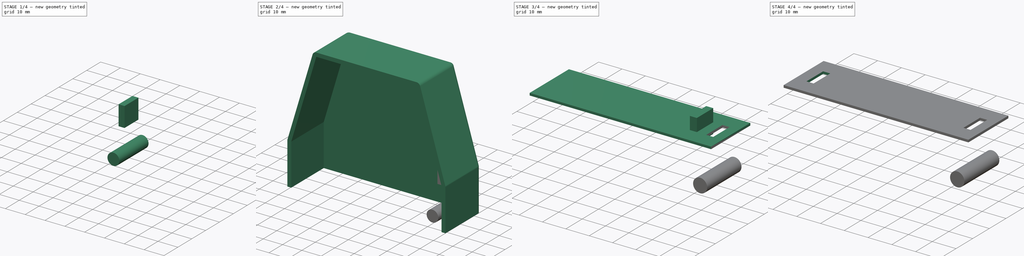
[diagram: build sequence overview — one tinted view per stage of 4, left to right]
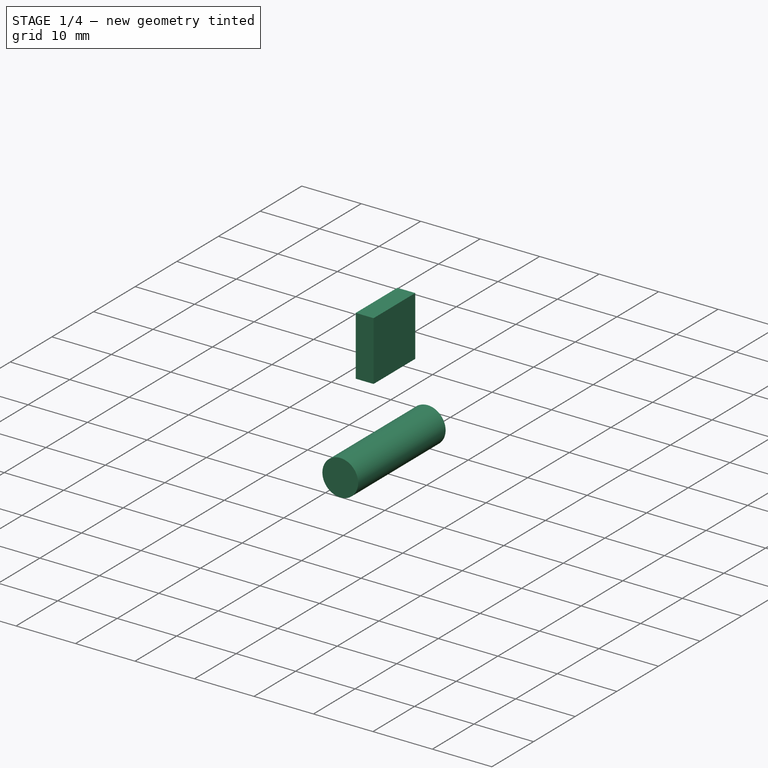
[diagram: stage 1 of 4 — iso view after this stage's code; geometry added in this stage tinted green]
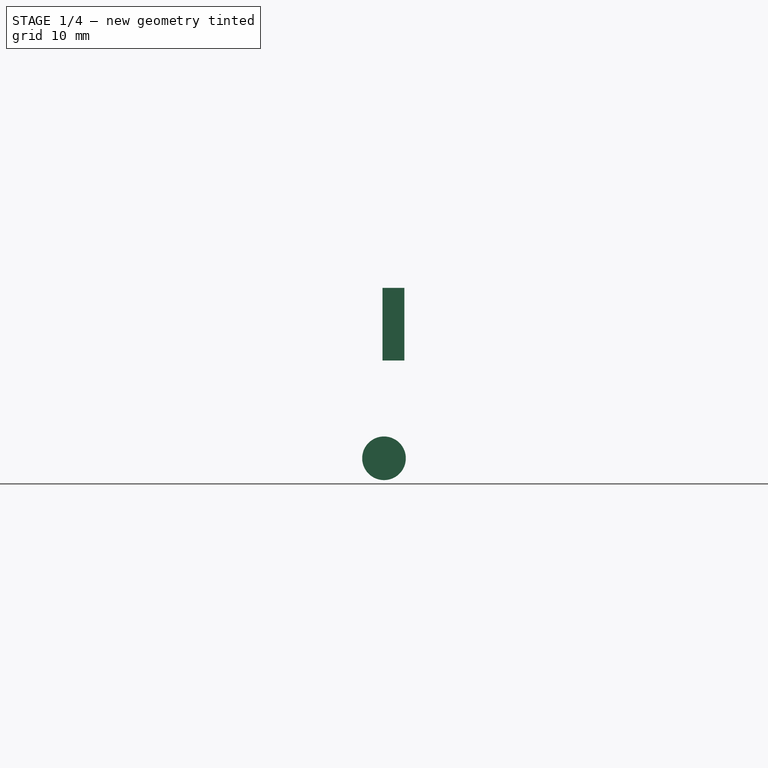
[diagram: stage 1 of 4 — front view after this stage's code; geometry added in this stage tinted green]
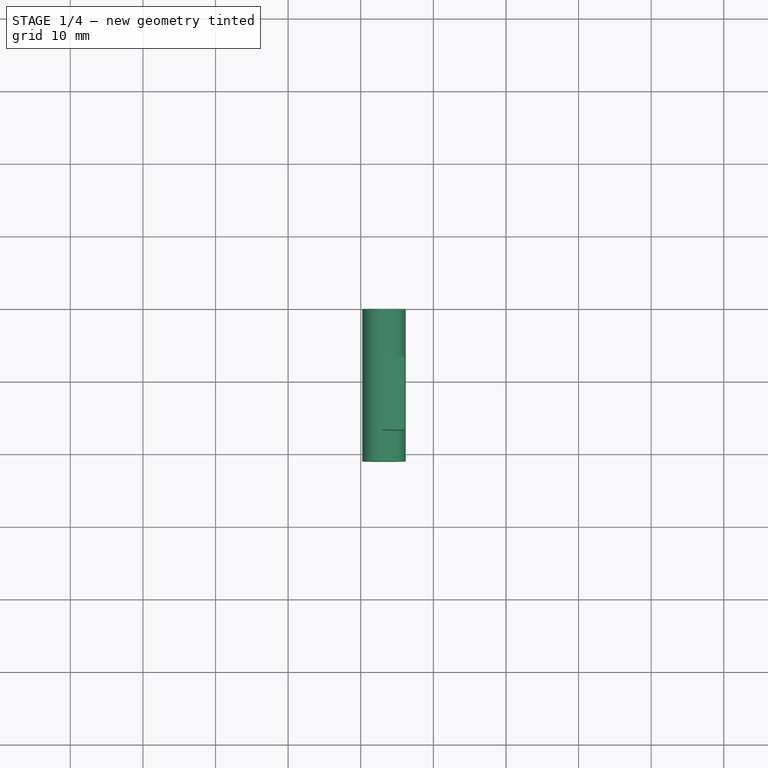
[diagram: stage 1 of 4 — top view after this stage's code; geometry added in this stage tinted green]
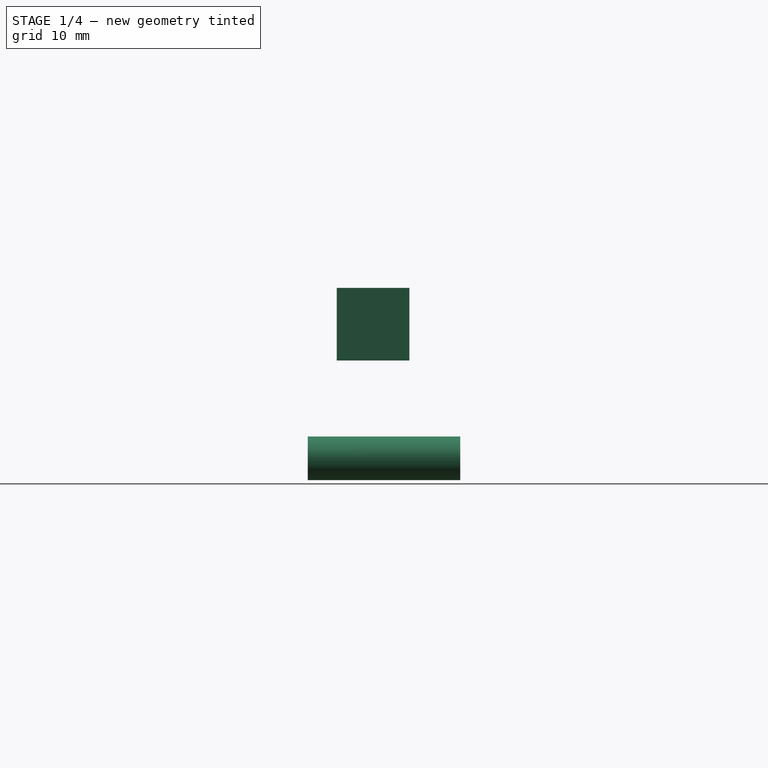
[diagram: stage 1 of 4 — right view after this stage's code; geometry added in this stage tinted green]
FCSTD DOCUMENT  (FreeCAD 0.18R4 (GitTag))
Label: корпус
License: All rights reserved
LicenseURL: http://en.wikipedia.org/wiki/All_rights_reserved
objects: PartDesign::Body×4, Sketcher::SketchObject×2, PartDesign::Pad×2, PartDesign::FeatureBase×2, Part::Cut×2, PartDesign::Thickness×1, App::Part×1, Part::RuledSurface×1, Part::Extrusion×1, Part::Box×1
note: 18 computed .brp shape members not serialized (recipe doc carries the construction recipe); baked Part::Feature solids carry a one-line shape summary decoded from their .brp

FEATURE [Part::Box] Box  label="Куб"
  AttacherType = Attacher::AttachEngine3D
  Height = 10
  Length = 3
  Placement = pos=(-7,-17,18) rot=(0,0,1;0rad)
  Width = 10
FEATURE [PartDesign::Body] Body002  label="Перегородка"
  BaseFeature = -> Cut001
  Group = -> [BaseFeature]
  Origin = -> Origin003
  Tip = -> BaseFeature
FEATURE [Sketcher::SketchObject] Sketch001
  MapMode = 5
  Placement = pos=(0,0,0) rot=(1,0,0;1.5708rad)
  Support = -> [XZ_Plane004]
  sketch-geometry (1):
    g0: Circle CenterX=-6.79876 CenterY=4.53456 CenterZ=0 NormalX=0 NormalY=0 NormalZ=1 AngleXU=0 Radius=3.004
FEATURE [PartDesign::Pad] Pad001
  Length = 21
  Length2 = 100
  Placement = pos=(0,0,0) rot=(1,0,0;1.5708rad)
  Profile = -> Sketch001
  Type = 0
FEATURE [PartDesign::Body] Body003
  Group = -> [Sketch001,Pad001]
  Origin = -> Origin004
  Placement = pos=(-7,-3,59) rot=(0,0,1;0rad)
  Tip = -> Pad001
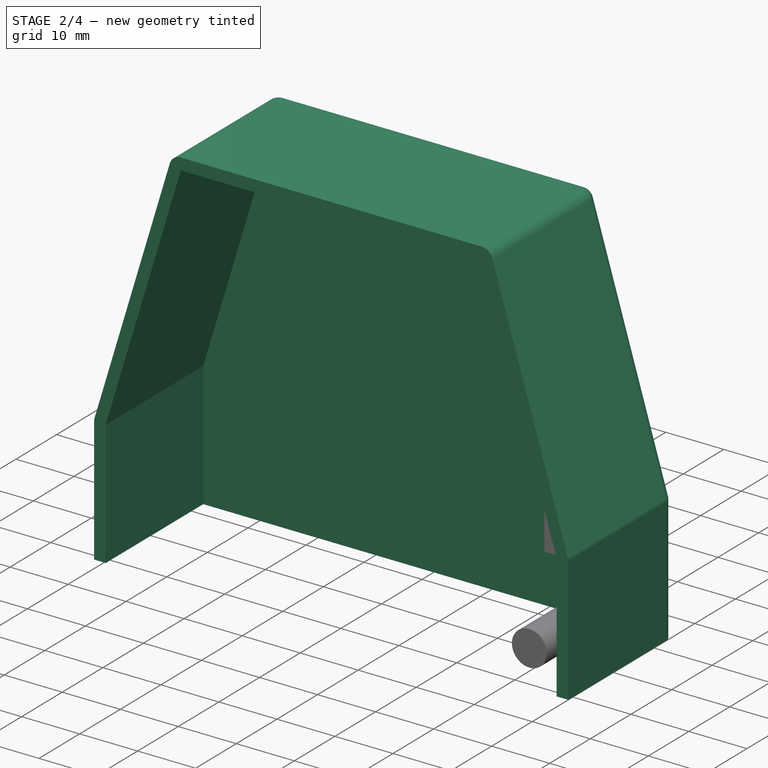
[diagram: stage 2 of 4 — iso view after this stage's code; geometry added in this stage tinted green]
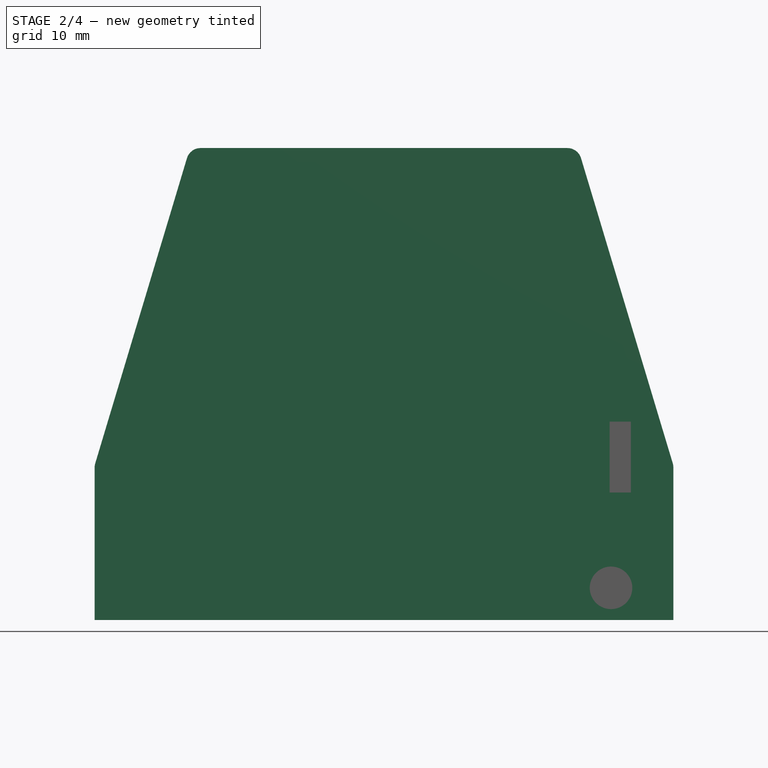
[diagram: stage 2 of 4 — front view after this stage's code; geometry added in this stage tinted green]
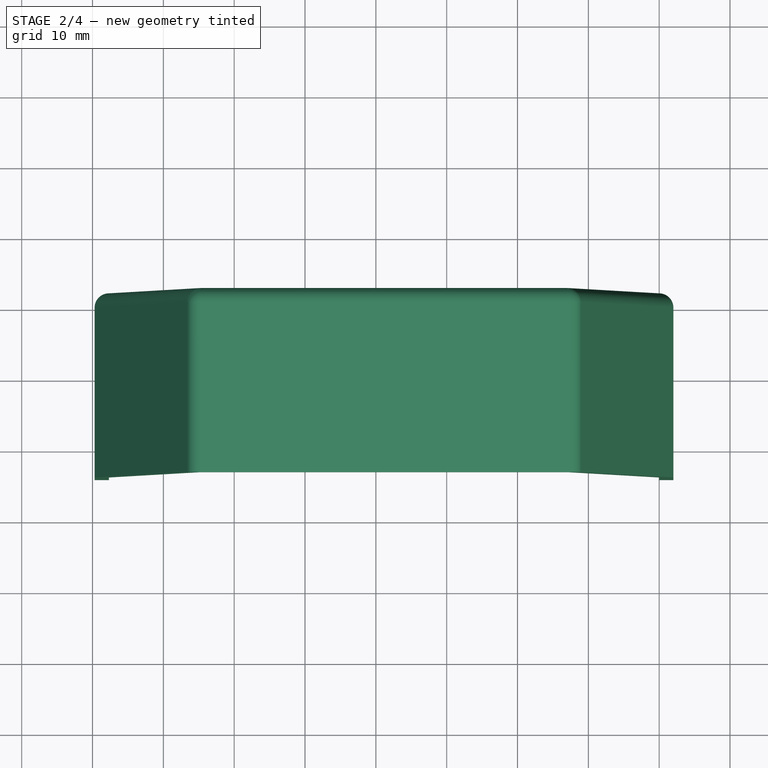
[diagram: stage 2 of 4 — top view after this stage's code; geometry added in this stage tinted green]
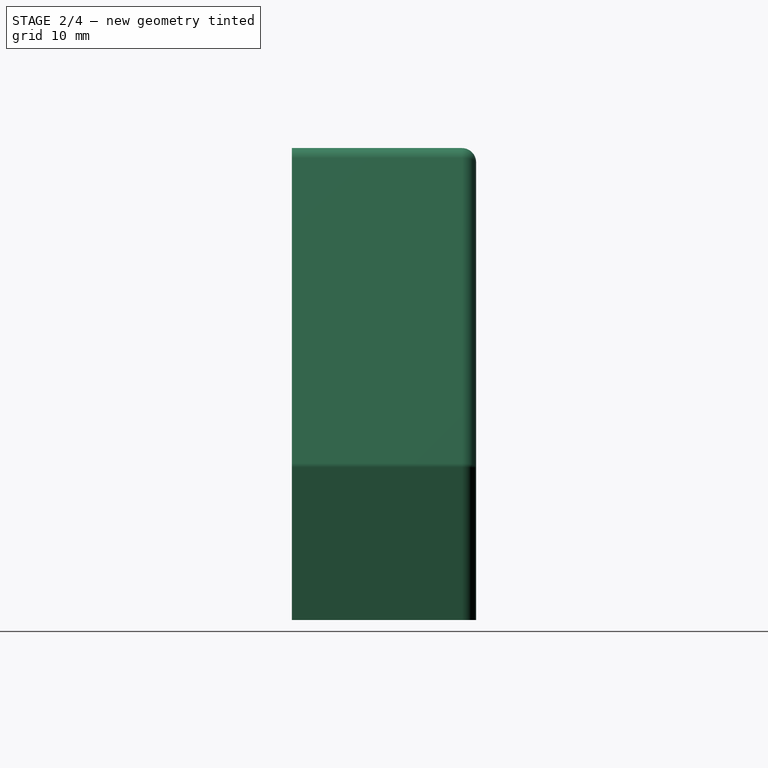
[diagram: stage 2 of 4 — right view after this stage's code; geometry added in this stage tinted green]
FEATURE [Sketcher::SketchObject] Sketch
  Placement = pos=(0,0,0) rot=(1,0,0;1.5708rad)
  sketch-geometry (7):
    g0: LineSegment StartX=-77.7 StartY=0 StartZ=0 EndX=-77.7 EndY=21.54 EndZ=0
    g1: LineSegment StartX=-77.7 StartY=0 StartZ=0 EndX=0 EndY=0 EndZ=0
    g2: LineSegment StartX=0 StartY=0 StartZ=0 EndX=0 EndY=21.54 EndZ=0
    g3: LineSegment StartX=-64.75 StartY=64.62 StartZ=0 EndX=-12.95 EndY=64.62 EndZ=0
    g4: LineSegment StartX=-77.7 StartY=21.54 StartZ=0 EndX=-64.75 EndY=64.62 EndZ=0
    g5: LineSegment StartX=0 StartY=21.54 StartZ=0 EndX=-12.95 EndY=64.62 EndZ=0
    g6: LineSegment [constr] StartX=0 StartY=0 StartZ=0 EndX=0 EndY=35.9606 EndZ=0
  constraints (19):
    c: Vertical(g0)
    c: Horizontal(g1)
    c: Coincident(g0,g1)
    c: Vertical(g2)
    c: Coincident(g1,g-1)
    c: Coincident(g2,g1)
    c: Horizontal(g3)
    c: Coincident(g2,g5)
    c: Coincident(g0,g4)
    c: Coincident(g3,g4)
    c: Coincident(g3,g5)
    c: Distance(g1) = 77.7
    c: Vertical(g6)
    c: Coincident(g1,g6)
    c: DistanceX(g3,g6) = 12.95
    c: Distance(g3) = 51.8
    c: Distance(g2) = 21.54
    c: Equal(g2,g0)
    c: DistanceY(g0,g3) = 43.08
FEATURE [PartDesign::Pad] Pad
  Length = 24
  Length2 = 100
  Placement = pos=(0,0,0) rot=(1,0,0;1.5708rad)
  Profile = -> Sketch
  Type = 0
FEATURE [PartDesign::Thickness] Thickness
  Base = -> Pad [Face8,Face2]
  BaseFeature = -> Pad
  Join = 0
  Mode = 0
  Value = 2
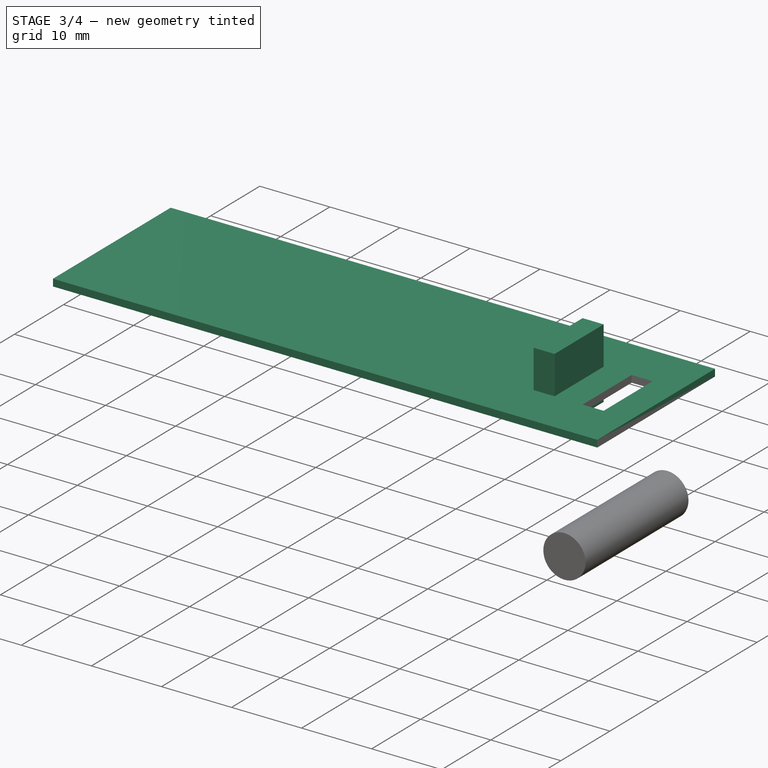
[diagram: stage 3 of 4 — iso view after this stage's code; geometry added in this stage tinted green]
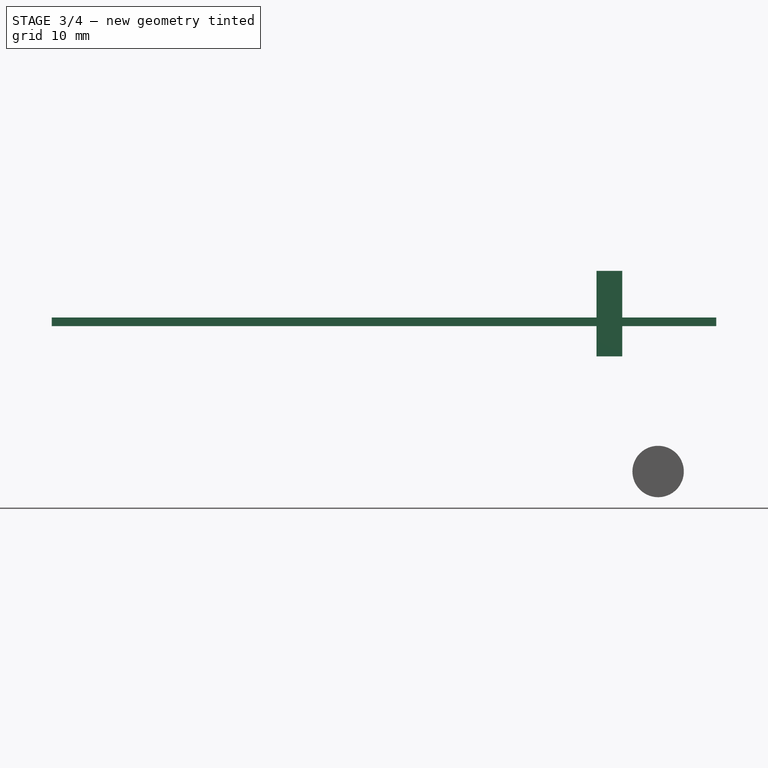
[diagram: stage 3 of 4 — front view after this stage's code; geometry added in this stage tinted green]
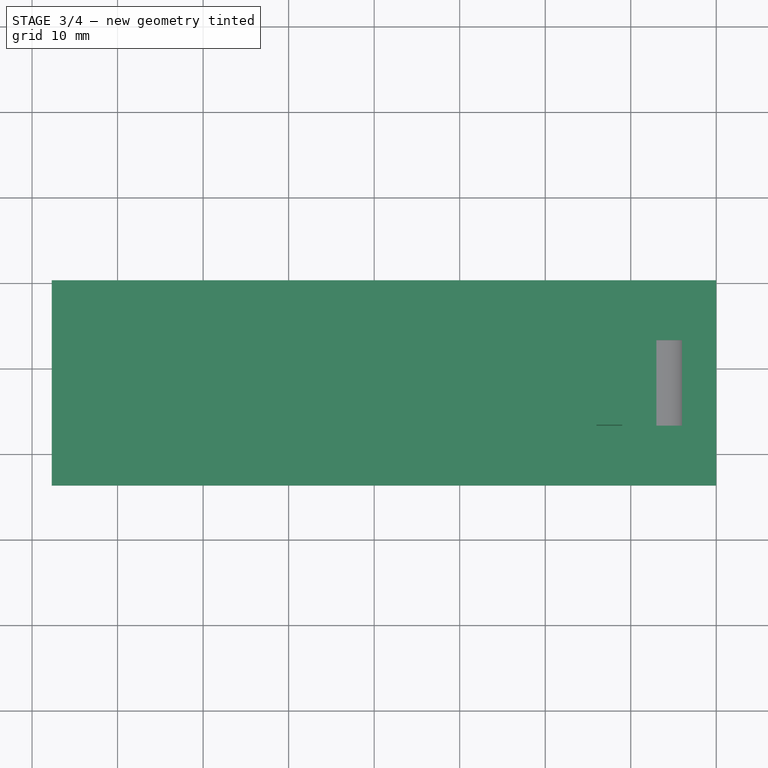
[diagram: stage 3 of 4 — top view after this stage's code; geometry added in this stage tinted green]
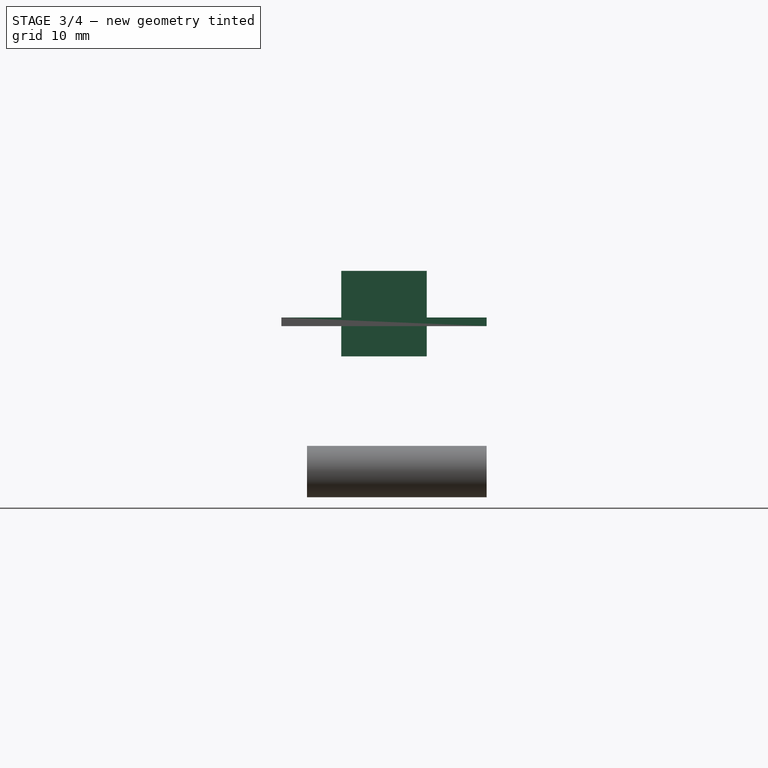
[diagram: stage 3 of 4 — right view after this stage's code; geometry added in this stage tinted green]
FEATURE [PartDesign::Body] Body  label="Передняя часть"
  Group = -> [Sketch,Pad,Thickness]
  Origin = -> Origin001
  Tip = -> Thickness
FEATURE [App::Part] Part  label="Корпус"
  Group = -> [Body]
  Origin = -> Origin
FEATURE [Part::RuledSurface] Ruled_Surface
  Curve1 = -> Thickness [Edge9]
  Curve2 = -> Thickness [Edge2]
  Orientation = 0
  Placement = pos=(0,0,0) rot=(1,0,0;1.5708rad)
FEATURE [Part::Extrusion] Extrude
  Base = -> Ruled_Surface
  Dir = (0,0,1)
  DirMode = 0
  FaceMakerClass = Part::FaceMakerBullseye
  LengthFwd = 2
  LengthRev = -3
  Placement = pos=(0,0,-2) rot=(0,0,1;0rad)
  Solid = true
  Symmetric = false
FEATURE [PartDesign::FeatureBase] Clone
  BaseFeature = -> Box
  Placement = pos=(-14,-17,18) rot=(0,0,1;0rad)
FEATURE [PartDesign::Body] Body001
  Group = -> [Clone]
  Origin = -> Origin002
  Placement = pos=(-59,0,0) rot=(0,0,1;0rad)
  Tip = -> Clone
FEATURE [Part::Cut] Cut
  Base = -> Extrude
  Tool = -> Box
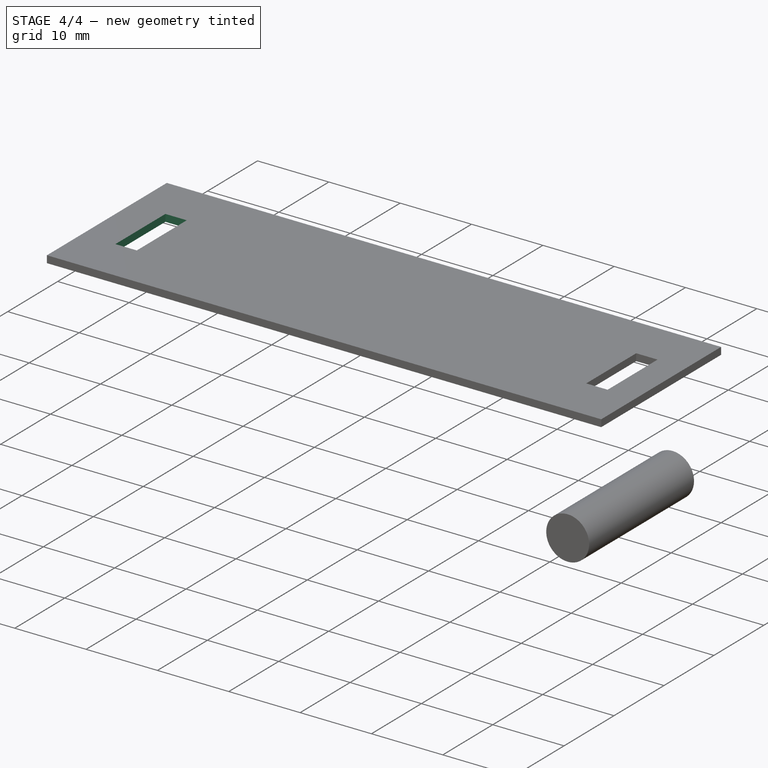
[diagram: stage 4 of 4 — iso view after this stage's code; geometry added in this stage tinted green]
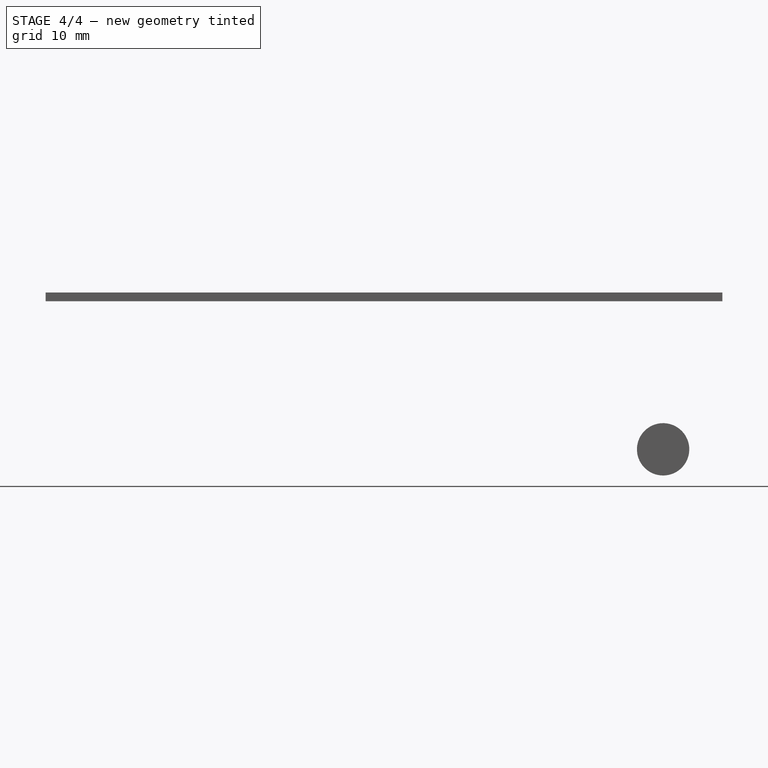
[diagram: stage 4 of 4 — front view after this stage's code; geometry added in this stage tinted green]
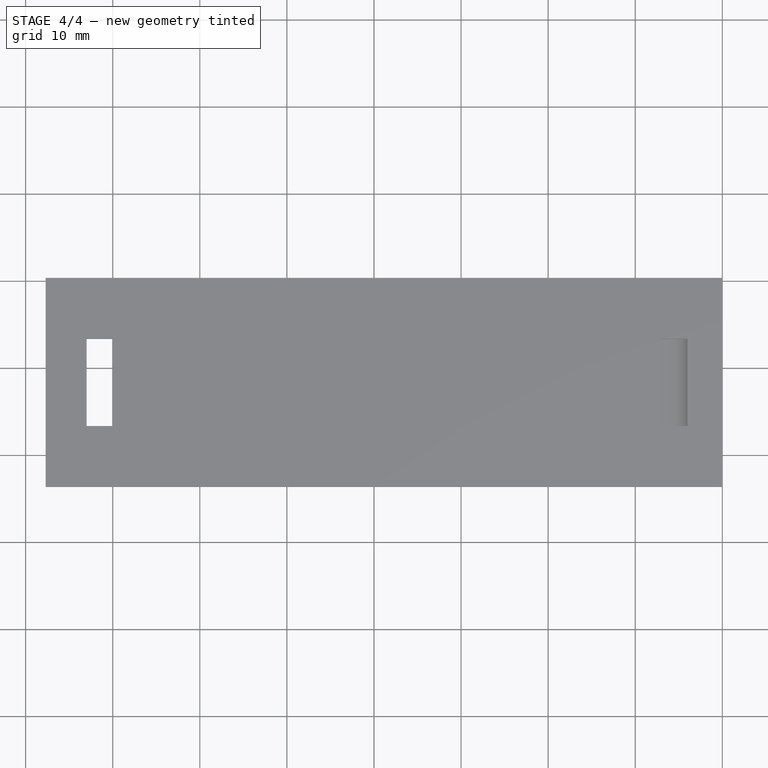
[diagram: stage 4 of 4 — top view after this stage's code; geometry added in this stage tinted green]
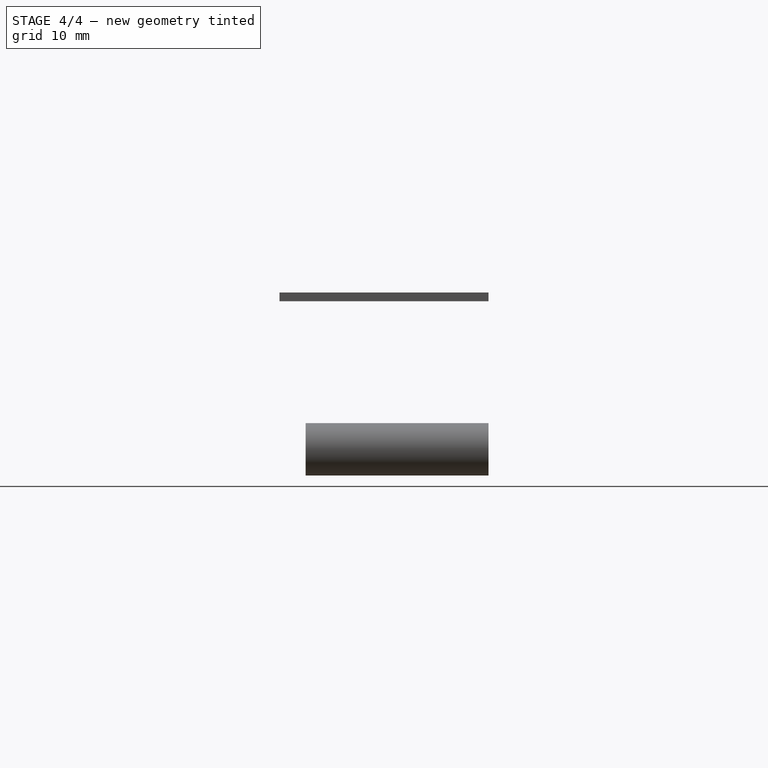
[diagram: stage 4 of 4 — right view after this stage's code; geometry added in this stage tinted green]
FEATURE [Part::Cut] Cut001
  Base = -> Cut
  Tool = -> Body001
FEATURE [PartDesign::FeatureBase] BaseFeature
  BaseFeature = -> Cut001
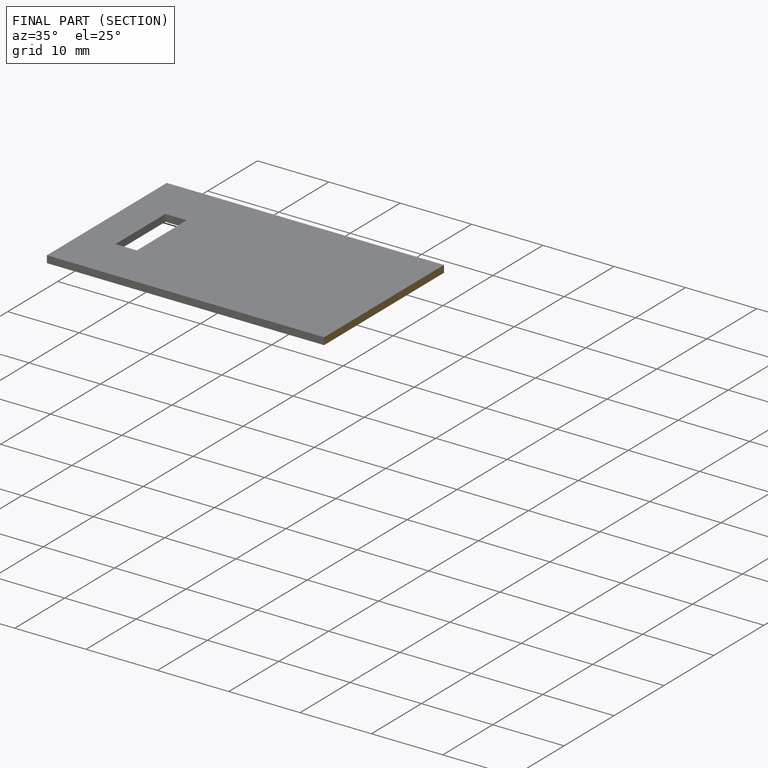
[diagram: finished part — half-section view (interior)]
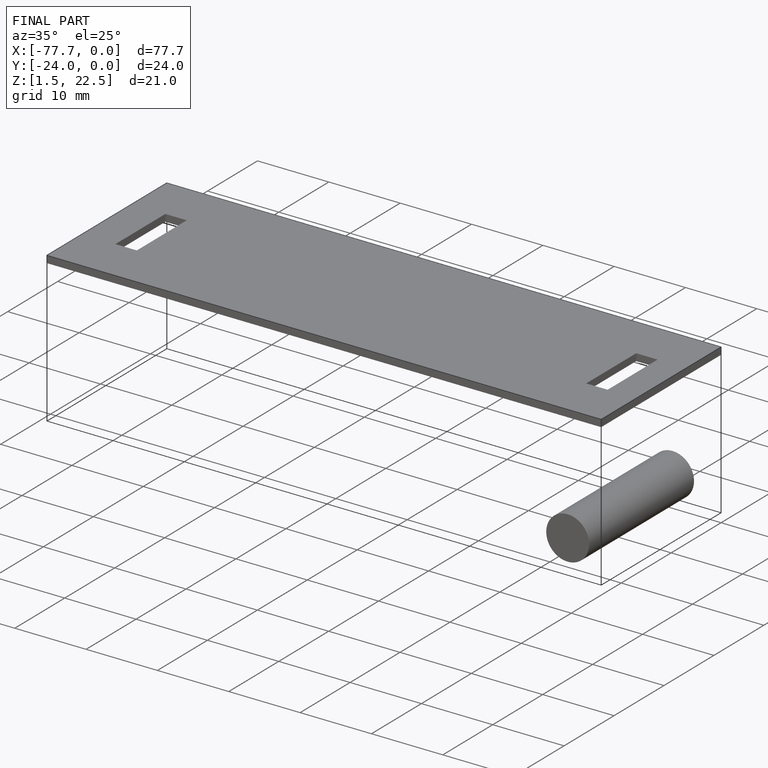
[diagram: finished part — iso view with bounding-box wireframe]
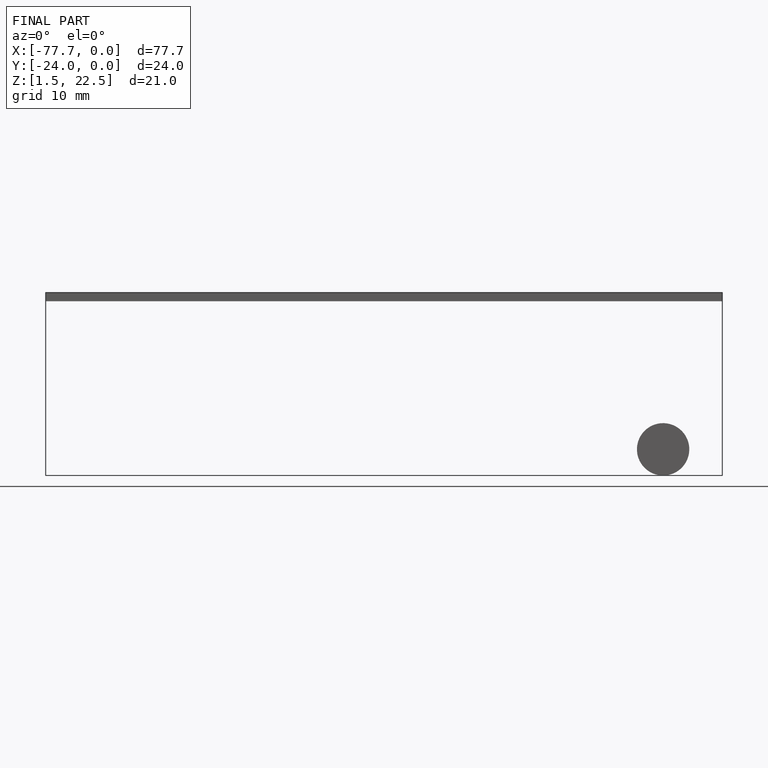
[diagram: finished part — front view with bounding-box wireframe]
